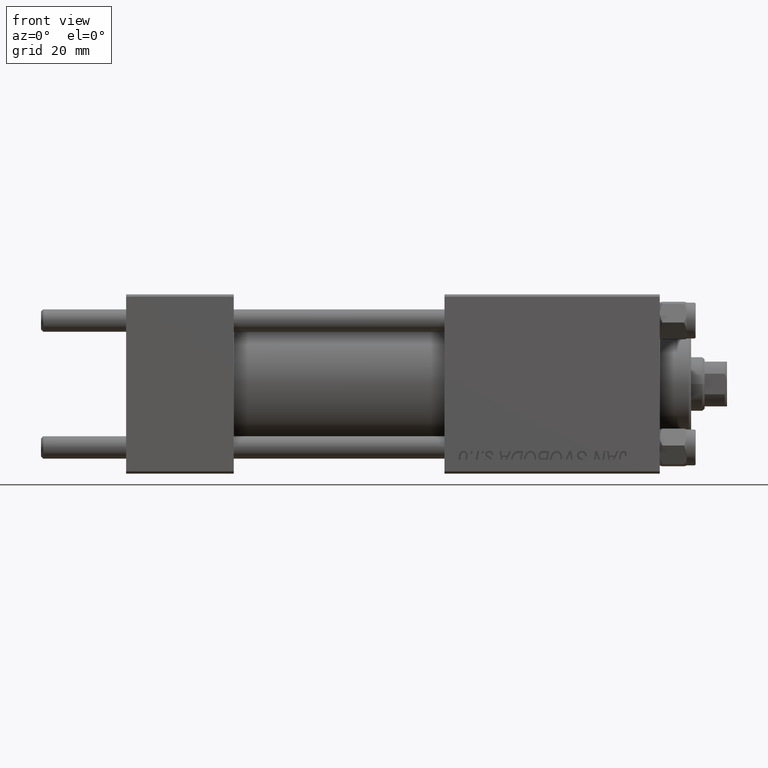
[diagram: clean part render]
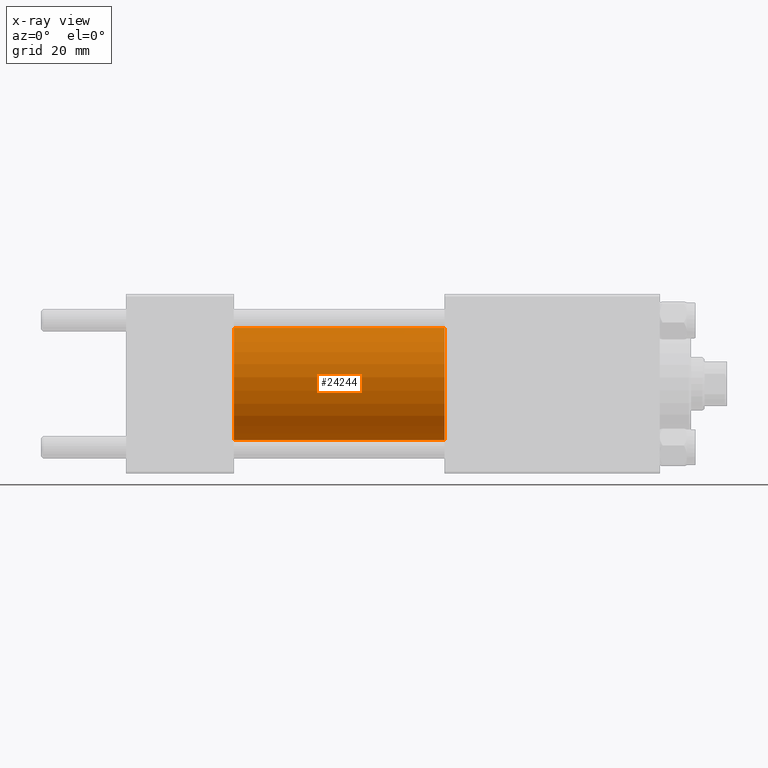
[diagram: x-ray — body ghosted, one internal face saturated and labeled with its STEP entity id]
A machine part, front view, then the same camera in x-ray: the body is ghosted and one INTERNAL B-rep face — a face not visible from any outside direction — is saturated and labeled: STEP entity #24244.
In plain terms, the highlighted cylindrical surface (partial cylindrical patch) has radius 12.5 mm, axis along (-1, -0, -0).
Its self-contained STEP definition (entity closure, byte-faithful):
#1072 = CARTESIAN_POINT ( 'NONE',  ( 24.00000000000000000, 0.000000000000000000, 0.000000000000000000 ) ) ;
#1247 = LINE ( 'NONE', #23980, #29285 ) ;
#2588 = EDGE_CURVE ( 'NONE', #34596, #25857, #11028, .T. ) ;
#4364 = CIRCLE ( 'NONE', #30995, 12.49999999999999645 ) ;
#5113 = DIRECTION ( 'NONE',  ( 1.000000000000000000, 0.000000000000000000, 0.000000000000000000 ) ) ;
#7642 = ORIENTED_EDGE ( 'NONE', *, *, #22315, .F. ) ;
#11028 = CIRCLE ( 'NONE', #32009, 12.49999999999999645 ) ;
#11315 = CARTESIAN_POINT ( 'NONE',  ( 71.00000000000001421, 0.000000000000000000, 0.000000000000000000 ) ) ;
#11811 = FACE_OUTER_BOUND ( 'NONE', #24038, .T. ) ;
#14100 = VERTEX_POINT ( 'NONE', #24192 ) ;
#14653 = CARTESIAN_POINT ( 'NONE',  ( 71.00000000000001421, 0.000000000000000000, 12.49999999999999645 ) ) ;
#15358 = CYLINDRICAL_SURFACE ( 'NONE', #17004, 12.49999999999999645 ) ;
#16360 = CARTESIAN_POINT ( 'NONE',  ( 24.00000000000000000, 1.530808498934191127E-15, -12.49999999999999645 ) ) ;
#16708 = DIRECTION ( 'NONE',  ( 0.000000000000000000, 0.000000000000000000, -1.000000000000000000 ) ) ;
#17004 = AXIS2_PLACEMENT_3D ( 'NONE', #11315, #38556, #45645 ) ;
#18934 = LINE ( 'NONE', #14653, #37086 ) ;
#20695 = DIRECTION ( 'NONE',  ( -1.000000000000000000, -0.000000000000000000, -0.000000000000000000 ) ) ;
#20748 = DIRECTION ( 'NONE',  ( 1.000000000000000000, 0.000000000000000000, 0.000000000000000000 ) ) ;
#22315 = EDGE_CURVE ( 'NONE', #34596, #14100, #18934, .T. ) ;
#22475 = CARTESIAN_POINT ( 'NONE',  ( 71.00000000000001421, 0.000000000000000000, 12.49999999999999645 ) ) ;
#22719 = DIRECTION ( 'NONE',  ( -1.000000000000000000, -0.000000000000000000, -0.000000000000000000 ) ) ;
#23827 = CARTESIAN_POINT ( 'NONE',  ( 71.00000000000001421, 1.530808498934191127E-15, -12.49999999999999645 ) ) ;
#23980 = CARTESIAN_POINT ( 'NONE',  ( 71.00000000000001421, 1.530808498934191127E-15, -12.49999999999999645 ) ) ;
#24038 = EDGE_LOOP ( 'NONE', ( #24598, #39861, #25120, #7642 ) ) ;
#24192 = CARTESIAN_POINT ( 'NONE',  ( 24.00000000000000000, 0.000000000000000000, 12.49999999999999645 ) ) ;
#24244 = ADVANCED_FACE ( 'NONE', ( #11811 ), #15358, .F. ) ;
#24541 = CARTESIAN_POINT ( 'NONE',  ( 71.00000000000001421, 0.000000000000000000, 0.000000000000000000 ) ) ;
#24598 = ORIENTED_EDGE ( 'NONE', *, *, #2588, .T. ) ;
#25120 = ORIENTED_EDGE ( 'NONE', *, *, #37153, .F. ) ;
#25857 = VERTEX_POINT ( 'NONE', #23827 ) ;
#28587 = DIRECTION ( 'NONE',  ( 0.000000000000000000, 0.000000000000000000, -1.000000000000000000 ) ) ;
#29285 = VECTOR ( 'NONE', #20695, 1000.000000000000000 ) ;
#30995 = AXIS2_PLACEMENT_3D ( 'NONE', #1072, #5113, #28587 ) ;
#32009 = AXIS2_PLACEMENT_3D ( 'NONE', #24541, #20748, #16708 ) ;
#34596 = VERTEX_POINT ( 'NONE', #22475 ) ;
#37086 = VECTOR ( 'NONE', #22719, 1000.000000000000000 ) ;
#37153 = EDGE_CURVE ( 'NONE', #14100, #49376, #4364, .T. ) ;
#38556 = DIRECTION ( 'NONE',  ( -1.000000000000000000, -0.000000000000000000, -0.000000000000000000 ) ) ;
#39861 = ORIENTED_EDGE ( 'NONE', *, *, #48933, .T. ) ;
#45645 = DIRECTION ( 'NONE',  ( 0.000000000000000000, 0.000000000000000000, 1.000000000000000000 ) ) ;
#48933 = EDGE_CURVE ( 'NONE', #25857, #49376, #1247, .T. ) ;
#49376 = VERTEX_POINT ( 'NONE', #16360 ) ;